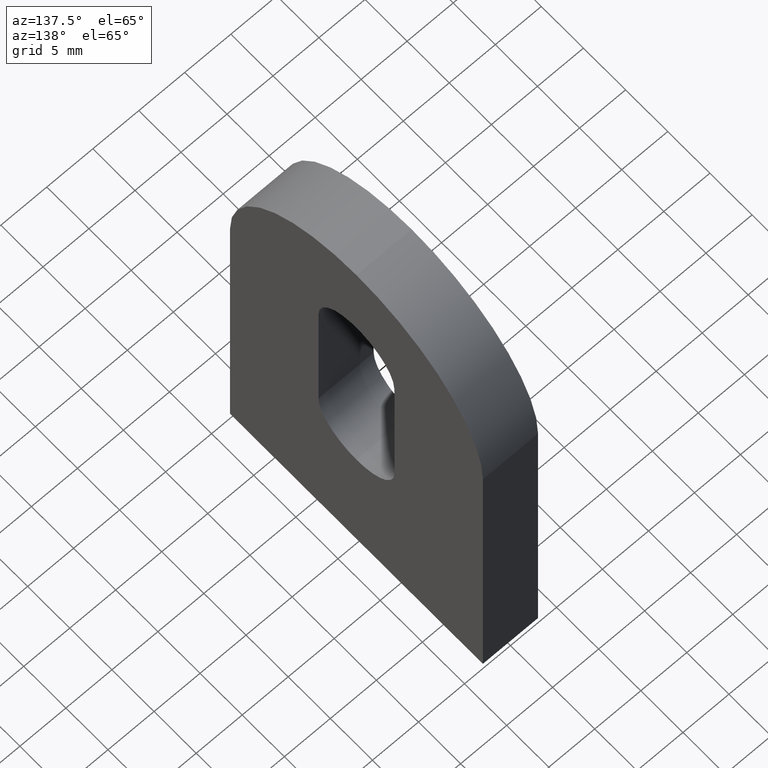
[diagram: clean part render]
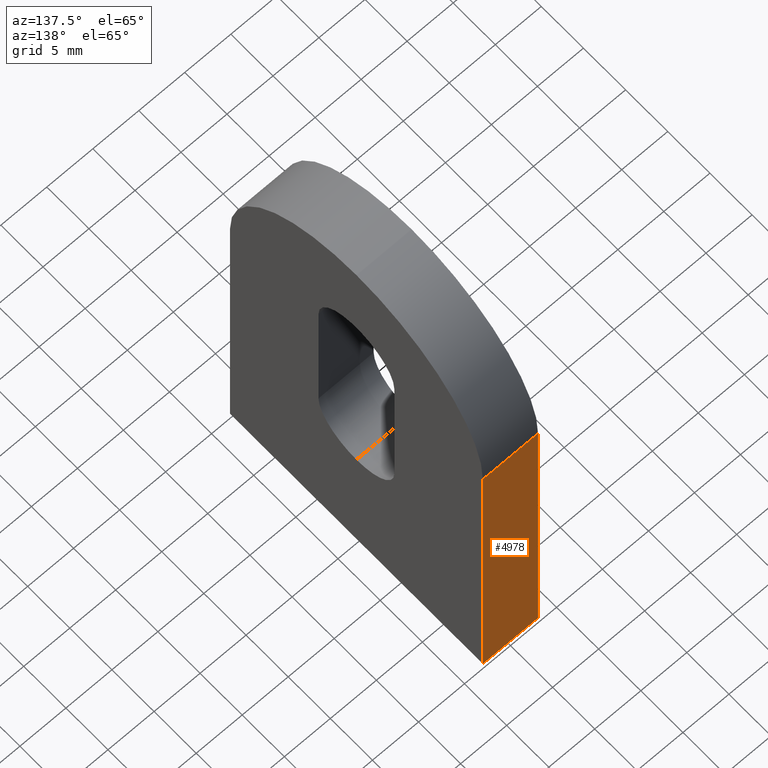
[diagram: same view with one face highlighted and labeled with its STEP entity id]
A machine part, auxiliary view. The second image highlights one B-rep face of the part: STEP entity #4978.
In plain terms, the highlighted planar face has unit normal (-0, 1, 0).
Its self-contained STEP definition (entity closure, byte-faithful):
#241 = DIRECTION ( 'NONE',  ( 0.0000000000000000000, 4.956352788505163400E-017, -1.000000000000000000 ) ) ;
#306 = CARTESIAN_POINT ( 'NONE',  ( -3.000000000000000000, 15.00000000000000000, -3.061616997868383000E-015 ) ) ;
#2003 = VECTOR ( 'NONE', #5499, 1000.000000000000000 ) ;
#2274 = LINE ( 'NONE', #11033, #2003 ) ;
#2449 = VERTEX_POINT ( 'NONE', #306 ) ;
#2888 = VERTEX_POINT ( 'NONE', #9193 ) ;
#3409 = EDGE_LOOP ( 'NONE', ( #5141, #10482, #11057, #10048 ) ) ;
#3809 = VERTEX_POINT ( 'NONE', #9185 ) ;
#3892 = CARTESIAN_POINT ( 'NONE',  ( 3.000000000000000000, 14.99999999999999800, 34.99999999999999300 ) ) ;
#4118 = DIRECTION ( 'NONE',  ( -0.0000000000000000000, 1.000000000000000000, 4.956352788505162800E-017 ) ) ;
#4319 = DIRECTION ( 'NONE',  ( -1.000000000000000000, -0.0000000000000000000, -0.0000000000000000000 ) ) ;
#4584 = CARTESIAN_POINT ( 'NONE',  ( -3.000000000000000000, 14.99999999999999800, 34.99999999999999300 ) ) ;
#4627 = EDGE_CURVE ( 'NONE', #3809, #2449, #6897, .T. ) ;
#4805 = VECTOR ( 'NONE', #11090, 1000.000000000000000 ) ;
#4978 = ADVANCED_FACE ( 'NONE', ( #10533 ), #8621, .T. ) ;
#5141 = ORIENTED_EDGE ( 'NONE', *, *, #8654, .F. ) ;
#5499 = DIRECTION ( 'NONE',  ( 0.0000000000000000000, 4.956352788505163400E-017, -1.000000000000000000 ) ) ;
#6133 = EDGE_CURVE ( 'NONE', #2888, #3809, #2274, .T. ) ;
#6202 = LINE ( 'NONE', #6551, #6637 ) ;
#6551 = CARTESIAN_POINT ( 'NONE',  ( -3.000000000000000000, 14.99999999999999800, 34.99999999999999300 ) ) ;
#6637 = VECTOR ( 'NONE', #241, 1000.000000000000000 ) ;
#6897 = LINE ( 'NONE', #9700, #9282 ) ;
#8374 = AXIS2_PLACEMENT_3D ( 'NONE', #9502, #4118, #9627 ) ;
#8436 = VERTEX_POINT ( 'NONE', #4584 ) ;
#8621 = PLANE ( 'NONE',  #8374 ) ;
#8654 = EDGE_CURVE ( 'NONE', #8436, #2449, #6202, .T. ) ;
#9185 = CARTESIAN_POINT ( 'NONE',  ( 3.000000000000000000, 15.00000000000000000, -3.061616997868383000E-015 ) ) ;
#9193 = CARTESIAN_POINT ( 'NONE',  ( 3.000000000000000000, 14.99999999999999800, 34.99999999999999300 ) ) ;
#9282 = VECTOR ( 'NONE', #4319, 1000.000000000000000 ) ;
#9502 = CARTESIAN_POINT ( 'NONE',  ( 3.000000000000000000, 14.99999999999999800, 34.99999999999999300 ) ) ;
#9627 = DIRECTION ( 'NONE',  ( 0.0000000000000000000, -4.956352788505162800E-017, 1.000000000000000000 ) ) ;
#9700 = CARTESIAN_POINT ( 'NONE',  ( 3.000000000000000000, 15.00000000000000000, -3.061616997868383000E-015 ) ) ;
#10048 = ORIENTED_EDGE ( 'NONE', *, *, #4627, .T. ) ;
#10482 = ORIENTED_EDGE ( 'NONE', *, *, #11695, .F. ) ;
#10533 = FACE_OUTER_BOUND ( 'NONE', #3409, .T. ) ;
#10820 = LINE ( 'NONE', #3892, #4805 ) ;
#11033 = CARTESIAN_POINT ( 'NONE',  ( 3.000000000000000000, 14.99999999999999800, 34.99999999999999300 ) ) ;
#11057 = ORIENTED_EDGE ( 'NONE', *, *, #6133, .T. ) ;
#11090 = DIRECTION ( 'NONE',  ( -1.000000000000000000, -0.0000000000000000000, -0.0000000000000000000 ) ) ;
#11695 = EDGE_CURVE ( 'NONE', #2888, #8436, #10820, .T. ) ;